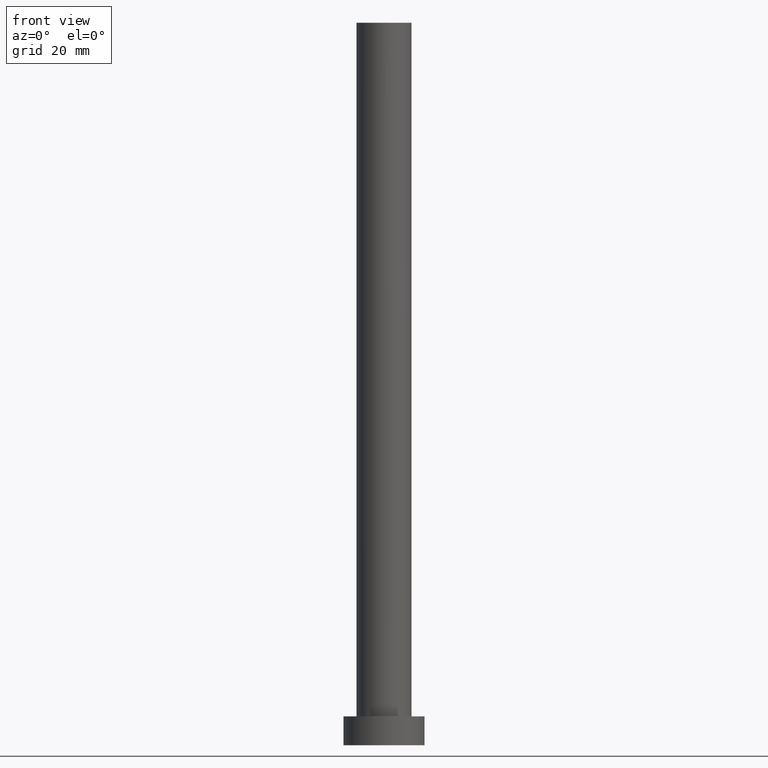
[diagram: clean part render]
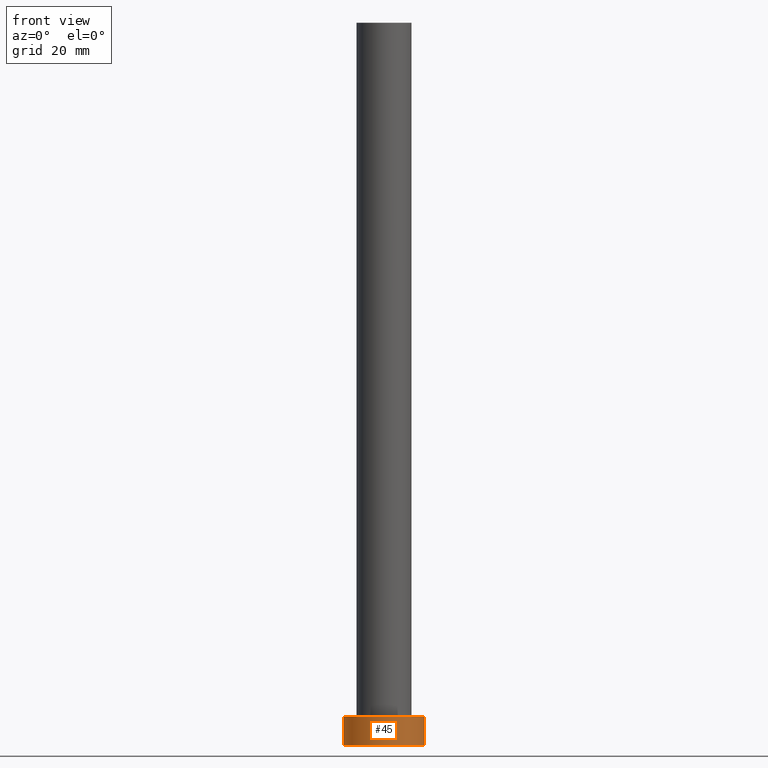
[diagram: same view with one face highlighted and labeled with its STEP entity id]
A machine part, front view. The second image highlights one B-rep face of the part: STEP entity #45.
In plain terms, the highlighted cylindrical surface (partial cylindrical patch) has radius 7 mm, axis along (-0, -0, -1).
Its self-contained STEP definition (entity closure, byte-faithful):
#2 = DIRECTION ( 'NONE',  ( 0.000000000000000000, 0.000000000000000000, 1.000000000000000000 ) ) ;
#13 = DIRECTION ( 'NONE',  ( -0.000000000000000000, -0.000000000000000000, -1.000000000000000000 ) ) ;
#16 = EDGE_CURVE ( 'NONE', #227, #106, #125, .T. ) ;
#23 = CARTESIAN_POINT ( 'NONE',  ( 7.000000000000000000, 8.572527594031473190E-16, 5.000000000000000000 ) ) ;
#25 = EDGE_CURVE ( 'NONE', #224, #106, #225, .T. ) ;
#30 = FACE_OUTER_BOUND ( 'NONE', #53, .T. ) ;
#35 = ORIENTED_EDGE ( 'NONE', *, *, #195, .F. ) ;
#40 = CARTESIAN_POINT ( 'NONE',  ( -7.000000000000000000, 0.000000000000000000, 5.000000000000000000 ) ) ;
#45 = ADVANCED_FACE ( 'NONE', ( #30 ), #129, .T. ) ;
#50 = AXIS2_PLACEMENT_3D ( 'NONE', #59, #2, #232 ) ;
#53 = EDGE_LOOP ( 'NONE', ( #161, #35, #67, #170 ) ) ;
#57 = CARTESIAN_POINT ( 'NONE',  ( 7.000000000000000000, 8.572527594031473190E-16, 5.000000000000000000 ) ) ;
#59 = CARTESIAN_POINT ( 'NONE',  ( 0.000000000000000000, 0.000000000000000000, 5.000000000000000000 ) ) ;
#67 = ORIENTED_EDGE ( 'NONE', *, *, #207, .T. ) ;
#80 = CIRCLE ( 'NONE', #50, 7.000000000000000000 ) ;
#90 = VECTOR ( 'NONE', #180, 1000.000000000000000 ) ;
#106 = VERTEX_POINT ( 'NONE', #147 ) ;
#107 = CARTESIAN_POINT ( 'NONE',  ( 0.000000000000000000, 0.000000000000000000, 0.000000000000000000 ) ) ;
#114 = CARTESIAN_POINT ( 'NONE',  ( -7.000000000000000000, 0.000000000000000000, 5.000000000000000000 ) ) ;
#125 = CIRCLE ( 'NONE', #158, 7.000000000000000000 ) ;
#129 = CYLINDRICAL_SURFACE ( 'NONE', #251, 7.000000000000000000 ) ;
#147 = CARTESIAN_POINT ( 'NONE',  ( 7.000000000000000000, 8.572527594031473190E-16, 0.000000000000000000 ) ) ;
#148 = CARTESIAN_POINT ( 'NONE',  ( 0.000000000000000000, 0.000000000000000000, 5.000000000000000000 ) ) ;
#151 = LINE ( 'NONE', #40, #155 ) ;
#155 = VECTOR ( 'NONE', #190, 1000.000000000000000 ) ;
#158 = AXIS2_PLACEMENT_3D ( 'NONE', #107, #187, #206 ) ;
#161 = ORIENTED_EDGE ( 'NONE', *, *, #25, .F. ) ;
#170 = ORIENTED_EDGE ( 'NONE', *, *, #16, .T. ) ;
#180 = DIRECTION ( 'NONE',  ( -0.000000000000000000, -0.000000000000000000, -1.000000000000000000 ) ) ;
#182 = VERTEX_POINT ( 'NONE', #114 ) ;
#187 = DIRECTION ( 'NONE',  ( 0.000000000000000000, 0.000000000000000000, 1.000000000000000000 ) ) ;
#190 = DIRECTION ( 'NONE',  ( -0.000000000000000000, -0.000000000000000000, -1.000000000000000000 ) ) ;
#195 = EDGE_CURVE ( 'NONE', #182, #224, #80, .T. ) ;
#202 = DIRECTION ( 'NONE',  ( -1.000000000000000000, 0.000000000000000000, 0.000000000000000000 ) ) ;
#206 = DIRECTION ( 'NONE',  ( 1.000000000000000000, 0.000000000000000000, 0.000000000000000000 ) ) ;
#207 = EDGE_CURVE ( 'NONE', #182, #227, #151, .T. ) ;
#216 = CARTESIAN_POINT ( 'NONE',  ( -7.000000000000000000, 0.000000000000000000, 0.000000000000000000 ) ) ;
#224 = VERTEX_POINT ( 'NONE', #23 ) ;
#225 = LINE ( 'NONE', #57, #90 ) ;
#227 = VERTEX_POINT ( 'NONE', #216 ) ;
#232 = DIRECTION ( 'NONE',  ( 1.000000000000000000, 0.000000000000000000, 0.000000000000000000 ) ) ;
#251 = AXIS2_PLACEMENT_3D ( 'NONE', #148, #13, #202 ) ;